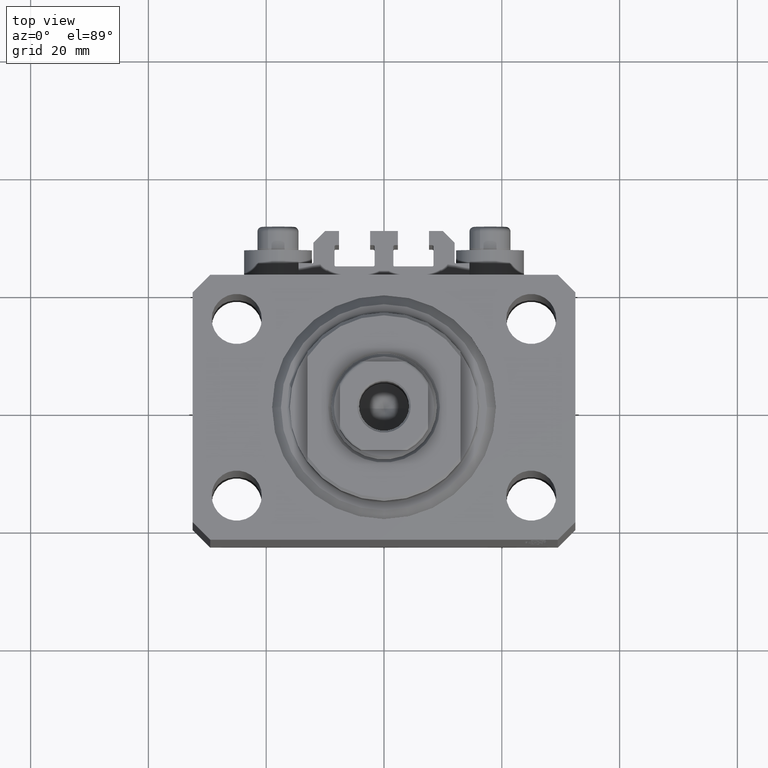
[diagram: clean part render]
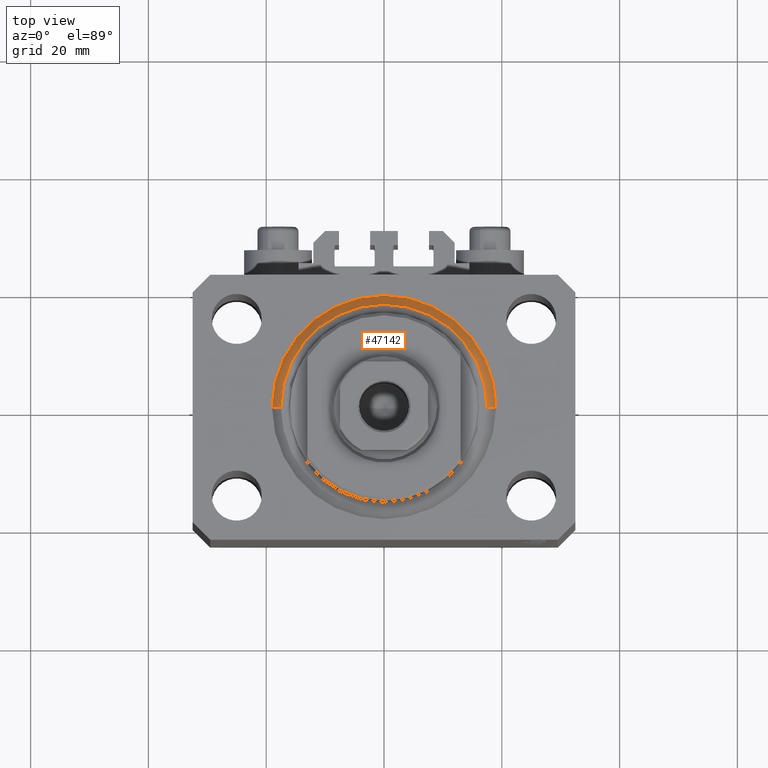
[diagram: same view with one face highlighted and labeled with its STEP entity id]
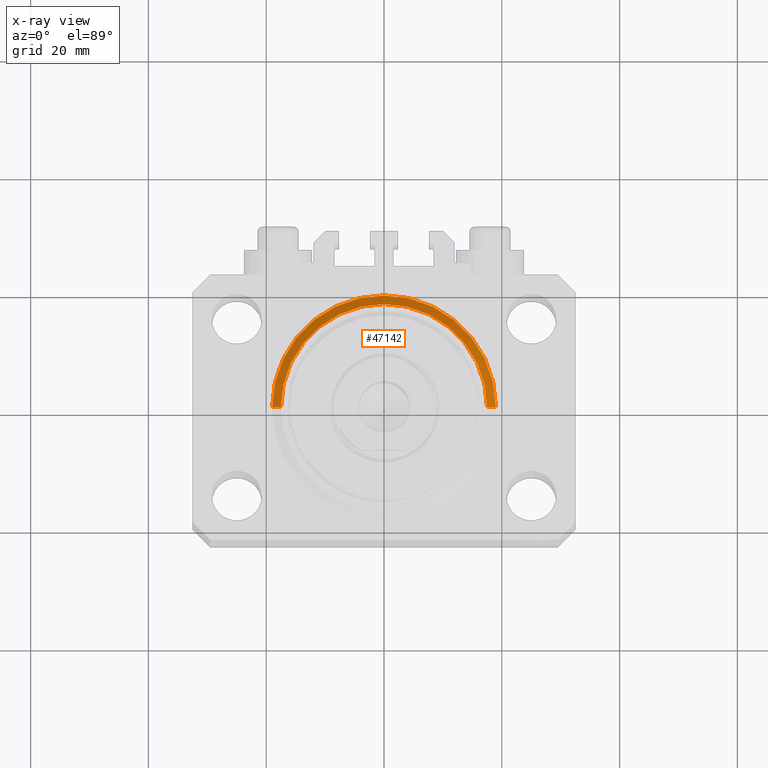
[diagram: x-ray of the same camera — body ghosted, the highlighted face saturated]
A machine part, top view. The second image highlights one B-rep face of the part: STEP entity #47142.
The next image is the same camera in x-ray: the body ghosted, the highlighted face saturated — about 0% of this face is hidden behind the body in this view.
In plain terms, the highlighted conical surface has half-angle 45 deg.
Its self-contained STEP definition (entity closure, byte-faithful):
#274 = CARTESIAN_POINT ( 'NONE',  ( -19.00000000000000000, 0.000000000000000000, 1.500000000000004885 ) ) ;
#557 = EDGE_CURVE ( 'NONE', #20574, #11456, #33571, .T. ) ;
#6142 = DIRECTION ( 'NONE',  ( 1.000000000000000000, 0.000000000000000000, 0.000000000000000000 ) ) ;
#6262 = CONICAL_SURFACE ( 'NONE', #36928, 19.00000000000000000, 0.7853981633974492782 ) ;
#6659 = VECTOR ( 'NONE', #27858, 1000.000000000000000 ) ;
#7085 = DIRECTION ( 'NONE',  ( 1.000000000000000000, 0.000000000000000000, 0.000000000000000000 ) ) ;
#9571 = CARTESIAN_POINT ( 'NONE',  ( 17.49999999999999289, 0.000000000000000000, 0.000000000000000000 ) ) ;
#9604 = DIRECTION ( 'NONE',  ( -0.7071067811865483499, 8.659560562354943952E-17, 0.7071067811865467956 ) ) ;
#10116 = CARTESIAN_POINT ( 'NONE',  ( 19.00000000000000000, 0.000000000000000000, 1.500000000000004885 ) ) ;
#11456 = VERTEX_POINT ( 'NONE', #274 ) ;
#11892 = ORIENTED_EDGE ( 'NONE', *, *, #38687, .F. ) ;
#13553 = CARTESIAN_POINT ( 'NONE',  ( 0.000000000000000000, 0.000000000000000000, 1.500000000000004885 ) ) ;
#16381 = VECTOR ( 'NONE', #9604, 1000.000000000000000 ) ;
#17065 = ORIENTED_EDGE ( 'NONE', *, *, #557, .F. ) ;
#20524 = FACE_OUTER_BOUND ( 'NONE', #32770, .T. ) ;
#20574 = VERTEX_POINT ( 'NONE', #23354 ) ;
#20760 = DIRECTION ( 'NONE',  ( -0.000000000000000000, -0.000000000000000000, 1.000000000000000000 ) ) ;
#21118 = ORIENTED_EDGE ( 'NONE', *, *, #25606, .T. ) ;
#21332 = DIRECTION ( 'NONE',  ( 1.000000000000000000, 0.000000000000000000, 0.000000000000000000 ) ) ;
#23354 = CARTESIAN_POINT ( 'NONE',  ( 19.00000000000000000, 2.326828918379970970E-15, 1.500000000000004885 ) ) ;
#25606 = EDGE_CURVE ( 'NONE', #39252, #11456, #38218, .T. ) ;
#26104 = CARTESIAN_POINT ( 'NONE',  ( 0.000000000000000000, 0.000000000000000000, 1.500000000000004885 ) ) ;
#27858 = DIRECTION ( 'NONE',  ( 0.7071067811865483499, 0.000000000000000000, 0.7071067811865467956 ) ) ;
#28337 = LINE ( 'NONE', #10116, #6659 ) ;
#30486 = CIRCLE ( 'NONE', #41262, 17.49999999999999289 ) ;
#32146 = VERTEX_POINT ( 'NONE', #9571 ) ;
#32428 = ORIENTED_EDGE ( 'NONE', *, *, #35317, .F. ) ;
#32770 = EDGE_LOOP ( 'NONE', ( #11892, #21118, #17065, #32428 ) ) ;
#33571 = CIRCLE ( 'NONE', #35003, 19.00000000000000000 ) ;
#35003 = AXIS2_PLACEMENT_3D ( 'NONE', #26104, #40774, #21332 ) ;
#35317 = EDGE_CURVE ( 'NONE', #32146, #20574, #28337, .T. ) ;
#36928 = AXIS2_PLACEMENT_3D ( 'NONE', #13553, #20760, #6142 ) ;
#38218 = LINE ( 'NONE', #42504, #16381 ) ;
#38687 = EDGE_CURVE ( 'NONE', #39252, #32146, #30486, .T. ) ;
#39252 = VERTEX_POINT ( 'NONE', #43220 ) ;
#40774 = DIRECTION ( 'NONE',  ( -0.000000000000000000, -0.000000000000000000, 1.000000000000000000 ) ) ;
#41262 = AXIS2_PLACEMENT_3D ( 'NONE', #44029, #47155, #7085 ) ;
#42504 = CARTESIAN_POINT ( 'NONE',  ( -19.00000000000000000, 2.326828918379970970E-15, 1.500000000000004885 ) ) ;
#43220 = CARTESIAN_POINT ( 'NONE',  ( -17.49999999999999289, 2.234980408443919215E-15, 0.000000000000000000 ) ) ;
#44029 = CARTESIAN_POINT ( 'NONE',  ( 0.000000000000000000, 0.000000000000000000, 0.000000000000000000 ) ) ;
#47142 = ADVANCED_FACE ( 'NONE', ( #20524 ), #6262, .T. ) ;
#47155 = DIRECTION ( 'NONE',  ( -0.000000000000000000, -0.000000000000000000, -1.000000000000000000 ) ) ;